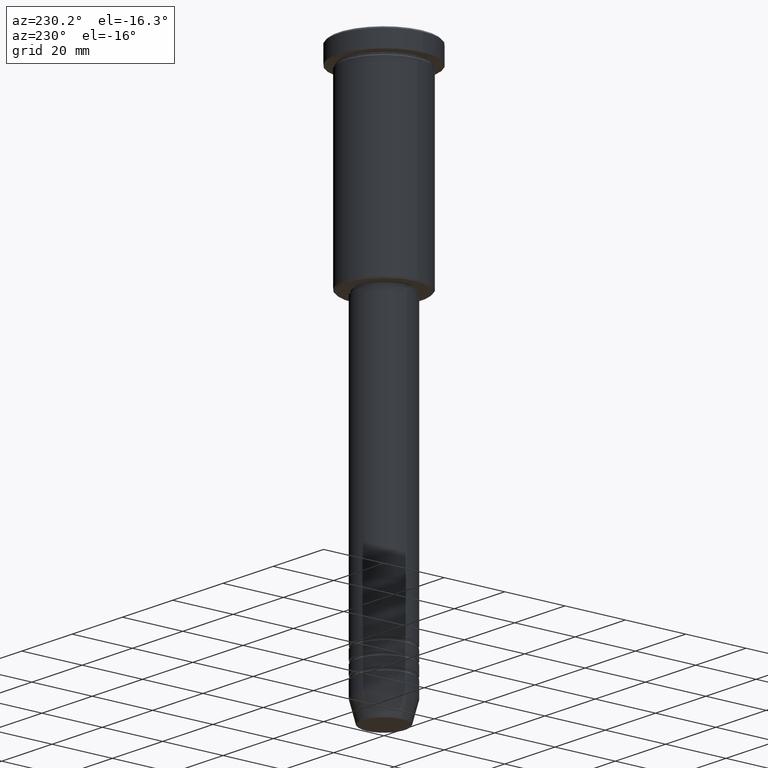
[diagram: clean part render]
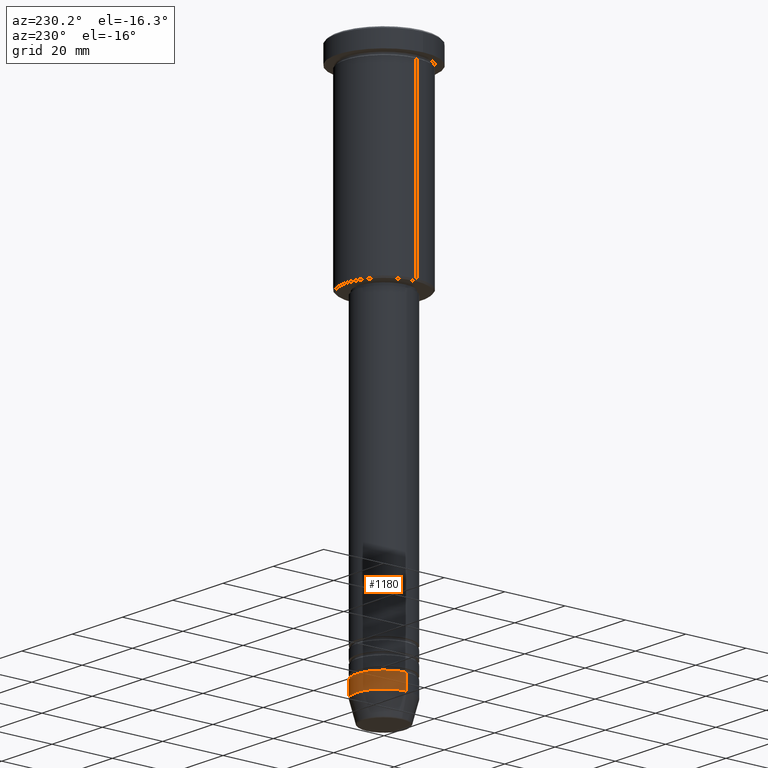
[diagram: same view with one face highlighted and labeled with its STEP entity id]
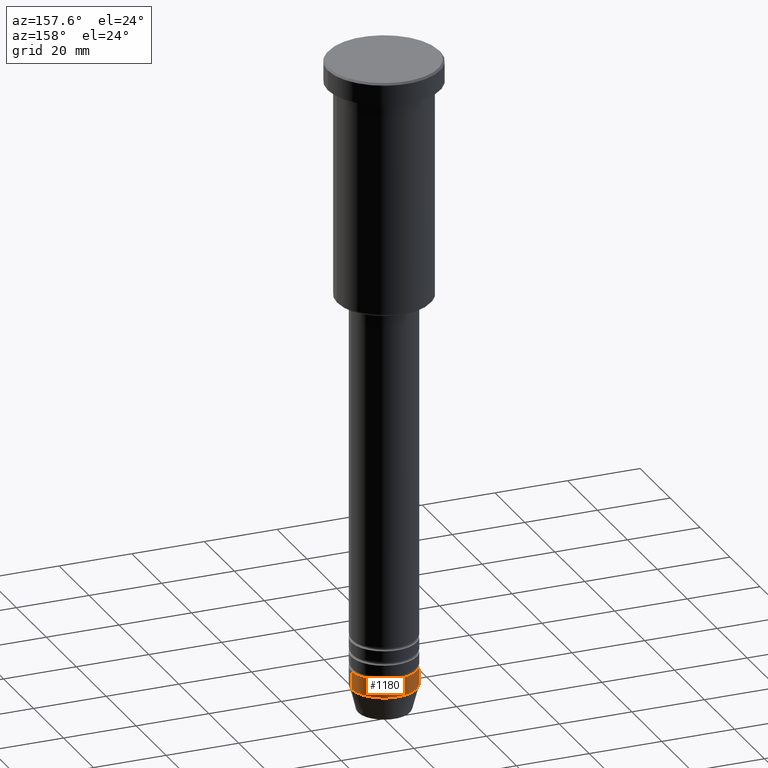
[diagram: same view with one face highlighted and labeled with its STEP entity id]
A machine part, auxiliary view. The second image highlights one B-rep face of the part: STEP entity #1180.
A second angle (auxiliary view) of the same face is appended — the face is thin or edge-on in the first view.
In plain terms, the highlighted cylindrical surface (edge-blend (fillet) strip) has radius 9 mm, axis along (-0, -0, 1).
Its self-contained STEP definition (entity closure, byte-faithful):
#4 = CARTESIAN_POINT ( 'NONE',  ( 9.000000000000000000, 0.000000000000000000, -168.9999999999999716 ) ) ;
#12 = VECTOR ( 'NONE', #341, 1000.000000000000000 ) ;
#15 = AXIS2_PLACEMENT_3D ( 'NONE', #1168, #524, #724 ) ;
#21 = DIRECTION ( 'NONE',  ( 1.000000000000000000, 0.000000000000000000, 0.000000000000000000 ) ) ;
#24 = LINE ( 'NONE', #1058, #12 ) ;
#92 = VERTEX_POINT ( 'NONE', #1095 ) ;
#236 = DIRECTION ( 'NONE',  ( -0.000000000000000000, -0.000000000000000000, 1.000000000000000000 ) ) ;
#263 = FACE_OUTER_BOUND ( 'NONE', #1015, .T. ) ;
#281 = AXIS2_PLACEMENT_3D ( 'NONE', #476, #577, #21 ) ;
#313 = VECTOR ( 'NONE', #972, 1000.000000000000000 ) ;
#341 = DIRECTION ( 'NONE',  ( -0.000000000000000000, -0.000000000000000000, 1.000000000000000000 ) ) ;
#344 = LINE ( 'NONE', #362, #313 ) ;
#362 = CARTESIAN_POINT ( 'NONE',  ( 9.000000000000000000, 0.000000000000000000, 0.000000000000000000 ) ) ;
#378 = CARTESIAN_POINT ( 'NONE',  ( 9.000000000000000000, 0.000000000000000000, -174.0000000000000000 ) ) ;
#398 = AXIS2_PLACEMENT_3D ( 'NONE', #698, #236, #685 ) ;
#476 = CARTESIAN_POINT ( 'NONE',  ( 0.000000000000000000, 0.000000000000000000, -174.0000000000000000 ) ) ;
#499 = EDGE_CURVE ( 'NONE', #856, #1161, #344, .T. ) ;
#512 = ORIENTED_EDGE ( 'NONE', *, *, #966, .T. ) ;
#519 = VERTEX_POINT ( 'NONE', #885 ) ;
#524 = DIRECTION ( 'NONE',  ( -0.000000000000000000, -0.000000000000000000, 1.000000000000000000 ) ) ;
#555 = ORIENTED_EDGE ( 'NONE', *, *, #569, .T. ) ;
#569 = EDGE_CURVE ( 'NONE', #856, #92, #1172, .T. ) ;
#577 = DIRECTION ( 'NONE',  ( -0.000000000000000000, -0.000000000000000000, 1.000000000000000000 ) ) ;
#606 = ORIENTED_EDGE ( 'NONE', *, *, #1108, .F. ) ;
#685 = DIRECTION ( 'NONE',  ( 1.000000000000000000, 0.000000000000000000, 0.000000000000000000 ) ) ;
#698 = CARTESIAN_POINT ( 'NONE',  ( 0.000000000000000000, 0.000000000000000000, -168.9999999999999716 ) ) ;
#724 = DIRECTION ( 'NONE',  ( 1.000000000000000000, 0.000000000000000000, 0.000000000000000000 ) ) ;
#825 = ORIENTED_EDGE ( 'NONE', *, *, #499, .F. ) ;
#856 = VERTEX_POINT ( 'NONE', #378 ) ;
#885 = CARTESIAN_POINT ( 'NONE',  ( -9.000000000000000000, 1.102182119232617714E-15, -168.9999999999999716 ) ) ;
#900 = CIRCLE ( 'NONE', #398, 9.000000000000000000 ) ;
#966 = EDGE_CURVE ( 'NONE', #92, #519, #24, .T. ) ;
#972 = DIRECTION ( 'NONE',  ( -0.000000000000000000, -0.000000000000000000, 1.000000000000000000 ) ) ;
#1015 = EDGE_LOOP ( 'NONE', ( #555, #512, #606, #825 ) ) ;
#1058 = CARTESIAN_POINT ( 'NONE',  ( -9.000000000000000000, 1.102182119232617714E-15, 0.000000000000000000 ) ) ;
#1095 = CARTESIAN_POINT ( 'NONE',  ( -9.000000000000000000, 1.102182119232617714E-15, -174.0000000000000000 ) ) ;
#1108 = EDGE_CURVE ( 'NONE', #1161, #519, #900, .T. ) ;
#1161 = VERTEX_POINT ( 'NONE', #4 ) ;
#1168 = CARTESIAN_POINT ( 'NONE',  ( 0.000000000000000000, 0.000000000000000000, 0.000000000000000000 ) ) ;
#1172 = CIRCLE ( 'NONE', #281, 9.000000000000000000 ) ;
#1176 = CYLINDRICAL_SURFACE ( 'NONE', #15, 9.000000000000000000 ) ;
#1180 = ADVANCED_FACE ( 'NONE', ( #263 ), #1176, .T. ) ;